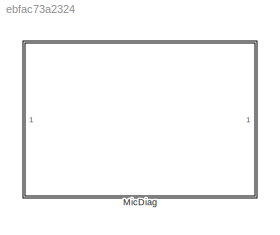
MODEL slx_ebfac73a2324
KIND library
CONFIG AbsTol = auto
CONFIG EnableMultiTasking = off
CONFIG FixedStep = auto
CONFIG MaxStep = auto
CONFIG MinStep = auto
CONFIG RelTol = 1e-3
CONFIG SampleTimeConstraint = Unconstrained
CONFIG SolverName = VariableStepAuto
CONFIG StartTime = 0.0
CONFIG StopTime = 10.0
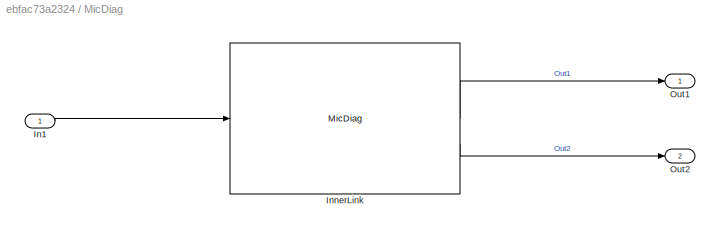
BLOCK [SubSystem] MicDiag
BLOCK [Inport] MicDiag/In1
BLOCK [Reference] MicDiag/InnerLink  REF=MicDiagBtc/MicDiag
  SourceBlock = MicDiagBtc/MicDiag
  SourceProductName = Bose Blocklib
  SourceType = Blocklib MicDiag
BLOCK [Outport] MicDiag/Out1
BLOCK [Outport] MicDiag/Out2
  Port = 2
LINE MicDiag/In1:1 -> MicDiag/InnerLink:1
LINE MicDiag/InnerLink:1 -> MicDiag/Out1:1
LINE MicDiag/InnerLink:2 -> MicDiag/Out2:1
